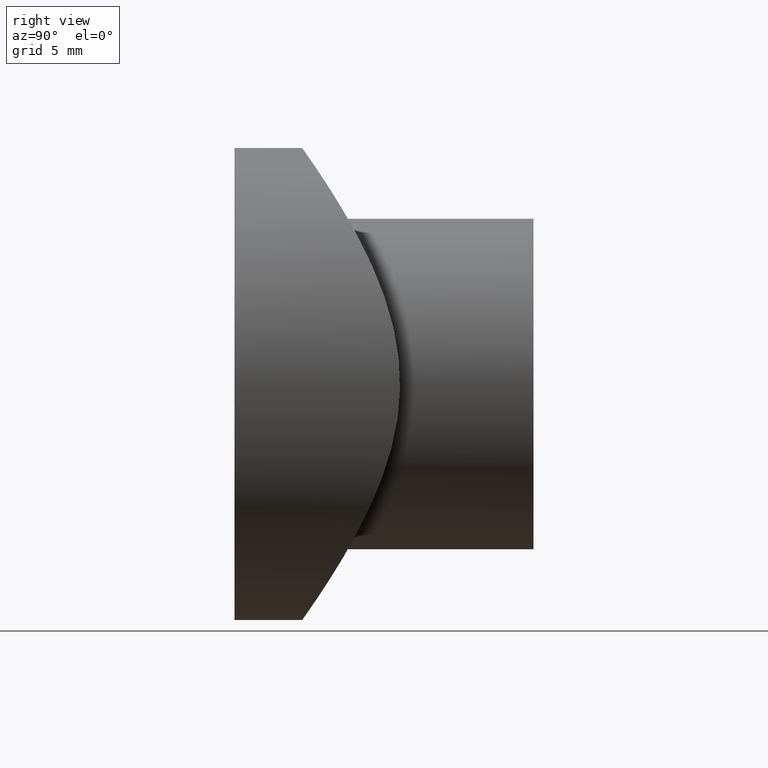
[diagram: clean part render]
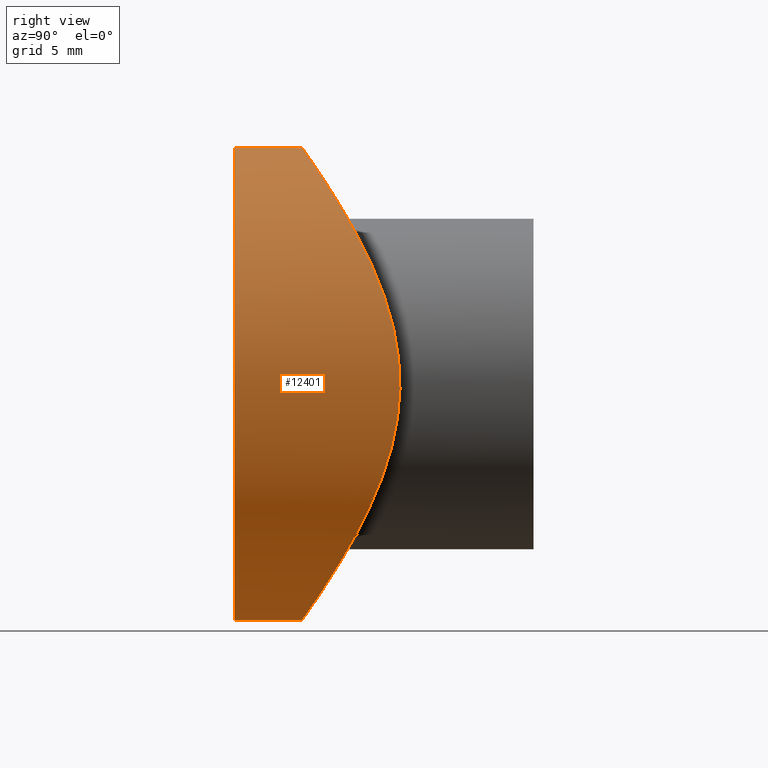
[diagram: same view with one face highlighted and labeled with its STEP entity id]
A machine part, right view. The second image highlights one B-rep face of the part: STEP entity #12401.
In plain terms, the highlighted cylindrical surface (partial cylindrical patch) has radius 15 mm, axis along (-0, -1, -0).
Its self-contained STEP definition (entity closure, byte-faithful):
#434 = CARTESIAN_POINT ( 'NONE',  ( 6.351530455719399400, 5.268324486726907500, -13.59783177504357700 ) ) ;
#475 = CARTESIAN_POINT ( 'NONE',  ( 6.950350054891880900E-016, 4.300000000000002500, -15.00000000000000000 ) ) ;
#604 = CARTESIAN_POINT ( 'NONE',  ( 14.89566689747022100, 10.41489345679889800, 1.784251289190086100 ) ) ;
#653 = CARTESIAN_POINT ( 'NONE',  ( 14.99378779998259700, 10.51244968222521500, -0.5022815987675073300 ) ) ;
#697 = CARTESIAN_POINT ( 'NONE',  ( 0.5101671749474547800, 4.299999999999998900, 15.00000000000000900 ) ) ;
#783 = CARTESIAN_POINT ( 'NONE',  ( 1.836969968176364600E-015, 4.300000000000002500, 15.00000000000000000 ) ) ;
#854 = CARTESIAN_POINT ( 'NONE',  ( 1.836969968176364600E-015, 4.300000000000002500, 15.00000000000000000 ) ) ;
#1468 = CARTESIAN_POINT ( 'NONE',  ( 13.99838597507499600, 9.576830677662275800, -5.411080993311570000 ) ) ;
#1480 = VERTEX_POINT ( 'NONE', #6618 ) ;
#1646 = CARTESIAN_POINT ( 'NONE',  ( 12.70436926886991300, 8.525168047591428400, 7.988835649168540200 ) ) ;
#1699 = CARTESIAN_POINT ( 'NONE',  ( 12.95086280399891400, 8.713078277714872800, 7.583238486127876300 ) ) ;
#1788 = CARTESIAN_POINT ( 'NONE',  ( 4.981939994508439700, 4.887887231530133800, 14.15736619453555400 ) ) ;
#1821 = CARTESIAN_POINT ( 'NONE',  ( 0.0000000000000000000, 20.00000000000000000, 0.0000000000000000000 ) ) ;
#2012 = DIRECTION ( 'NONE',  ( -0.0000000000000000000, -1.000000000000000000, -0.0000000000000000000 ) ) ;
#2140 = VERTEX_POINT ( 'NONE', #12686 ) ;
#2143 = ORIENTED_EDGE ( 'NONE', *, *, #10471, .F. ) ;
#2355 = AXIS2_PLACEMENT_3D ( 'NONE', #1821, #10468, #2848 ) ;
#2496 = CARTESIAN_POINT ( 'NONE',  ( 8.060838096176546200, 5.887433030605972600, -12.65926637552613300 ) ) ;
#2527 = CIRCLE ( 'NONE', #8607, 15.00000000000000000 ) ;
#2549 = CARTESIAN_POINT ( 'NONE',  ( 11.31892550391120300, 7.558015682289249200, -9.888181463966814600 ) ) ;
#2593 = CARTESIAN_POINT ( 'NONE',  ( 14.96780463597057000, 10.48650069110615800, -1.015275221201316100 ) ) ;
#2765 = CARTESIAN_POINT ( 'NONE',  ( 10.31771975614302400, 6.976129878483612300, 10.89814207383176400 ) ) ;
#2776 = VERTEX_POINT ( 'NONE', #6832 ) ;
#2814 = CARTESIAN_POINT ( 'NONE',  ( 14.74039007328632200, 10.26300763193868800, 2.790115978284368300 ) ) ;
#2848 = DIRECTION ( 'NONE',  ( 0.0000000000000000000, 0.0000000000000000000, -1.000000000000000000 ) ) ;
#2916 = CARTESIAN_POINT ( 'NONE',  ( 14.48454752923775700, 10.01715601495642900, 4.027335326478662700 ) ) ;
#3621 = CARTESIAN_POINT ( 'NONE',  ( 4.978384514409853500, 4.886935098768449700, -14.15875757066219600 ) ) ;
#3664 = EDGE_LOOP ( 'NONE', ( #3731, #7579, #10522, #2143 ) ) ;
#3731 = ORIENTED_EDGE ( 'NONE', *, *, #11053, .T. ) ;
#3844 = LINE ( 'NONE', #12720, #13521 ) ;
#3860 = DIRECTION ( 'NONE',  ( 0.0000000000000000000, 0.0000000000000000000, 1.000000000000000000 ) ) ;
#3898 = CARTESIAN_POINT ( 'NONE',  ( 9.231927247915733000, 6.411257782142962800, 11.83209348245944900 ) ) ;
#3899 = B_SPLINE_CURVE_WITH_KNOTS ( 'NONE', 3,
 ( #475, #12215, #5682, #13139, #11130, #3621, #13185, #434, #9028, #6731, #2496, #9974, #11042, #2549, #11173, #13275, #7858, #1468, #8932, #12262, #10020, #11092, #5772, #8979, #2593, #653, #8045, #8181, #5904, #604, #9173, #10298, #2814, #2916, #12455, #13453, #5991, #1699, #1646, #8087, #11308, #2765, #13553, #3898, #6038, #10204, #12359, #4939, #1788, #9118, #11362, #7051, #5940, #13504, #697, #783 ),
 .UNSPECIFIED., .F., .F.,
 ( 4, 2, 2, 2, 2, 2, 2, 2, 2, 2, 2, 2, 2, 2, 2, 2, 2, 2, 2, 2, 2, 2, 2, 2, 2, 2, 2, 4 ),
 ( 7.602895152439071400E-019, 0.003050122000959232000, 0.004575183001438847300, 0.006100244001918463100, 0.007625305002398078900, 0.009150366002877692900, 0.01220048800383693000, 0.01525061000479616600, 0.01830073200575540300, 0.01982579300623502400, 0.02135085400671464500, 0.02287591500719426600, 0.02363844550743407500, 0.02440097600767388700, 0.02592603700815350800, 0.02668856750839331300, 0.02745109800863312200, 0.03050122000959236400, 0.03202628101007198900, 0.03355134201055160600, 0.03660146401151085500, 0.03812652501199047900, 0.03965158601247011100, 0.04270170801342936000, 0.04422676901390898400, 0.04575183001438861600, 0.04727689101486824000, 0.04880195201534787100 ),
 .UNSPECIFIED. ) ;
#3926 = EDGE_CURVE ( 'NONE', #8421, #2776, #4301, .T. ) ;
#4301 = LINE ( 'NONE', #6241, #9461 ) ;
#4939 = CARTESIAN_POINT ( 'NONE',  ( 5.454151336420805400, 5.008095883092084800, 13.98209102784477100 ) ) ;
#5682 = CARTESIAN_POINT ( 'NONE',  ( 2.043170436509503600, 4.375080336109362200, -14.89440917403802100 ) ) ;
#5772 = CARTESIAN_POINT ( 'NONE',  ( 14.86973174700734800, 10.38919325975518100, -2.038058840166234300 ) ) ;
#5904 = CARTESIAN_POINT ( 'NONE',  ( 14.97343534145617900, 10.49195012549242800, 1.026651843955651300 ) ) ;
#5940 = CARTESIAN_POINT ( 'NONE',  ( 2.048559601778868500, 4.392956673467700100, 14.86837835065094500 ) ) ;
#5991 = CARTESIAN_POINT ( 'NONE',  ( 13.40915369830361400, 9.076839969926572500, 6.739803439327005200 ) ) ;
#6038 = CARTESIAN_POINT ( 'NONE',  ( 8.852002315393969300, 6.231710801410932800, 12.11899376402822300 ) ) ;
#6090 = CARTESIAN_POINT ( 'NONE',  ( 0.0000000000000000000, 0.0000000000000000000, 0.0000000000000000000 ) ) ;
#6241 = CARTESIAN_POINT ( 'NONE',  ( 1.836970198721029600E-015, 20.00000000000000000, 15.00000000000000000 ) ) ;
#6618 = CARTESIAN_POINT ( 'NONE',  ( 6.950350054891880900E-016, 4.300000000000002500, -15.00000000000000000 ) ) ;
#6731 = CARTESIAN_POINT ( 'NONE',  ( 7.645083418236099600, 5.721252006725754000, -12.91471632741381000 ) ) ;
#6804 = CYLINDRICAL_SURFACE ( 'NONE', #2355, 15.00000000000000000 ) ;
#6832 = CARTESIAN_POINT ( 'NONE',  ( 1.836970198721029600E-015, 0.0000000000000000000, 15.00000000000000000 ) ) ;
#7051 = CARTESIAN_POINT ( 'NONE',  ( 2.551696363798559500, 4.448193406101355900, 14.78999408664829900 ) ) ;
#7579 = ORIENTED_EDGE ( 'NONE', *, *, #3926, .T. ) ;
#7858 = CARTESIAN_POINT ( 'NONE',  ( 13.43100386595287400, 9.089739189981980200, -6.748819515009666100 ) ) ;
#8045 = CARTESIAN_POINT ( 'NONE',  ( 15.00014536824234500, 10.51882384539205300, -0.2464609913336577300 ) ) ;
#8087 = CARTESIAN_POINT ( 'NONE',  ( 11.91380816464897500, 7.952212437312414100, 9.162485973406612400 ) ) ;
#8148 = DIRECTION ( 'NONE',  ( 0.0000000000000000000, 1.000000000000000000, 0.0000000000000000000 ) ) ;
#8181 = CARTESIAN_POINT ( 'NONE',  ( 14.99970170496069100, 10.51837962911275600, 0.5190039660785242800 ) ) ;
#8421 = VERTEX_POINT ( 'NONE', #854 ) ;
#8607 = AXIS2_PLACEMENT_3D ( 'NONE', #6090, #8148, #3860 ) ;
#8932 = CARTESIAN_POINT ( 'NONE',  ( 14.16948291444263800, 9.729586025192775300, -4.946876846338229300 ) ) ;
#8979 = CARTESIAN_POINT ( 'NONE',  ( 14.94804833223627900, 10.46679669200955600, -1.273382335794185400 ) ) ;
#9028 = CARTESIAN_POINT ( 'NONE',  ( 6.791217099102302900, 5.412054784869132700, -13.38344382445033700 ) ) ;
#9118 = CARTESIAN_POINT ( 'NONE',  ( 4.026673480603216500, 4.680182047635288900, 14.45809961079490000 ) ) ;
#9173 = CARTESIAN_POINT ( 'NONE',  ( 14.86333637846644300, 10.38298400107315600, 2.036138960231168100 ) ) ;
#9461 = VECTOR ( 'NONE', #13799, 1000.000000000000000 ) ;
#9553 = EDGE_CURVE ( 'NONE', #2776, #2140, #2527, .T. ) ;
#9974 = CARTESIAN_POINT ( 'NONE',  ( 9.259529327917256600, 6.409146368158707800, -11.84050930250177400 ) ) ;
#10020 = CARTESIAN_POINT ( 'NONE',  ( 14.59001419307615600, 10.11847994803264900, -3.518860291203700800 ) ) ;
#10204 = CARTESIAN_POINT ( 'NONE',  ( 7.669062603808166400, 5.717049428669944300, 12.92661201382836800 ) ) ;
#10298 = CARTESIAN_POINT ( 'NONE',  ( 14.78580158217697300, 10.30713942064409100, 2.538641711094336000 ) ) ;
#10468 = DIRECTION ( 'NONE',  ( -0.0000000000000000000, -1.000000000000000000, -0.0000000000000000000 ) ) ;
#10471 = EDGE_CURVE ( 'NONE', #1480, #2140, #3844, .T. ) ;
#10522 = ORIENTED_EDGE ( 'NONE', *, *, #9553, .T. ) ;
#11042 = CARTESIAN_POINT ( 'NONE',  ( 9.987513009438796300, 6.784165535398623900, -11.23137529929968200 ) ) ;
#11053 = EDGE_CURVE ( 'NONE', #1480, #8421, #3899, .T. ) ;
#11092 = CARTESIAN_POINT ( 'NONE',  ( 14.79225952839678700, 10.31287613444231600, -2.537705646391687200 ) ) ;
#11130 = CARTESIAN_POINT ( 'NONE',  ( 4.015400776673463000, 4.677912842407223200, -14.46137216590424200 ) ) ;
#11173 = CARTESIAN_POINT ( 'NONE',  ( 11.92469948525148900, 7.959623824908444300, -9.148395562305694300 ) ) ;
#11308 = CARTESIAN_POINT ( 'NONE',  ( 11.31931210414192200, 7.558160783535239300, 9.887999797731133400 ) ) ;
#11325 = FACE_OUTER_BOUND ( 'NONE', #3664, .T. ) ;
#11362 = CARTESIAN_POINT ( 'NONE',  ( 3.540755277119002700, 4.591801434186368900, 14.58485966623156900 ) ) ;
#12215 = CARTESIAN_POINT ( 'NONE',  ( 1.033356399120643100, 4.300000000000001600, -15.00000000000000000 ) ) ;
#12262 = CARTESIAN_POINT ( 'NONE',  ( 14.46523057057526500, 10.00040943961513700, -4.000367625058203200 ) ) ;
#12359 = CARTESIAN_POINT ( 'NONE',  ( 6.823485403674207600, 5.405631348699731800, 13.39502117176070200 ) ) ;
#12401 = ADVANCED_FACE ( 'NONE', ( #11325 ), #6804, .T. ) ;
#12455 = CARTESIAN_POINT ( 'NONE',  ( 14.18855926920799400, 9.740120736696260600, 4.962408395752211400 ) ) ;
#12686 = CARTESIAN_POINT ( 'NONE',  ( 0.0000000000000000000, 0.0000000000000000000, -15.00000000000000000 ) ) ;
#12720 = CARTESIAN_POINT ( 'NONE',  ( 0.0000000000000000000, 20.00000000000000000, -15.00000000000000000 ) ) ;
#13139 = CARTESIAN_POINT ( 'NONE',  ( 3.525362641355047200, 4.589213015609551900, -14.58856781065268700 ) ) ;
#13185 = CARTESIAN_POINT ( 'NONE',  ( 5.445109695152459600, 5.005771212068951900, -13.98548349253870300 ) ) ;
#13275 = CARTESIAN_POINT ( 'NONE',  ( 12.97779654802850900, 8.723824901508214300, -7.580791247353465300 ) ) ;
#13453 = CARTESIAN_POINT ( 'NONE',  ( 13.62064610950171300, 9.252530914257734600, 6.301839204964747600 ) ) ;
#13504 = CARTESIAN_POINT ( 'NONE',  ( 1.023886303130450100, 4.318509701430024000, 14.97387485116687800 ) ) ;
#13521 = VECTOR ( 'NONE', #2012, 1000.000000000000000 ) ;
#13553 = CARTESIAN_POINT ( 'NONE',  ( 9.964075930361051500, 6.783009028569629200, 11.22248224513934100 ) ) ;
#13799 = DIRECTION ( 'NONE',  ( -0.0000000000000000000, -1.000000000000000000, -0.0000000000000000000 ) ) ;